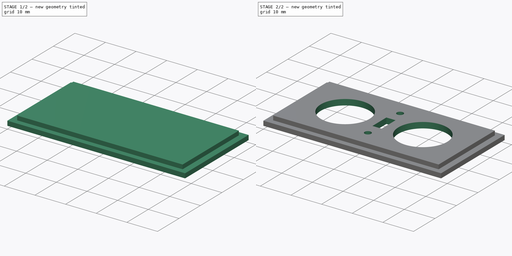
[diagram: build sequence overview — one tinted view per stage of 2, left to right]
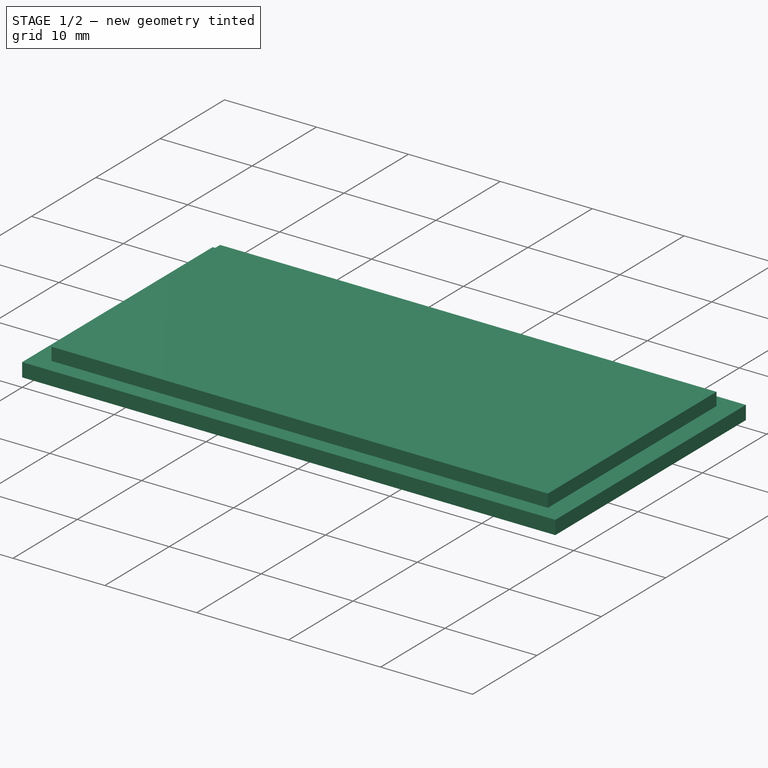
[diagram: stage 1 of 2 — iso view after this stage's code; geometry added in this stage tinted green]
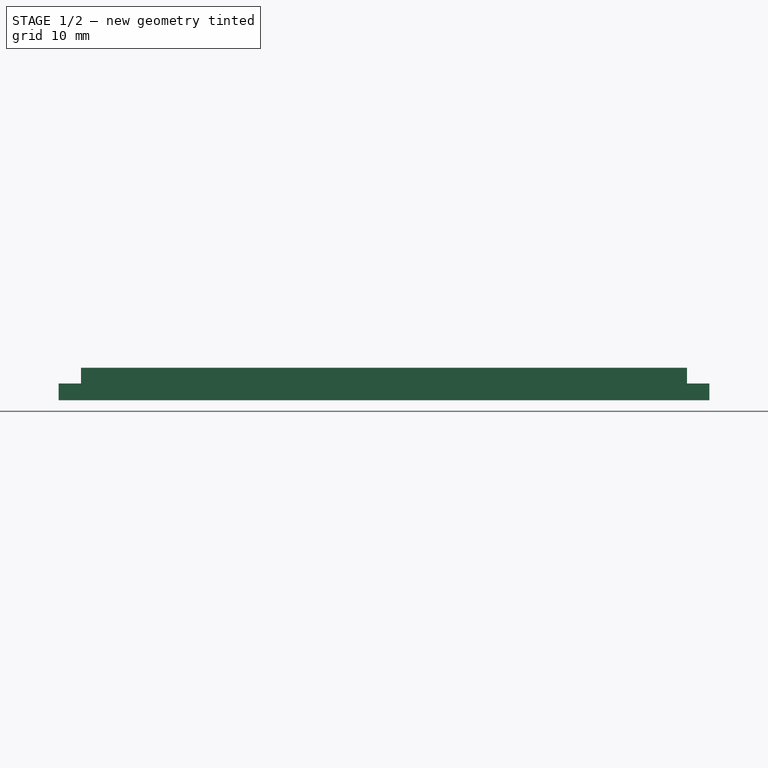
[diagram: stage 1 of 2 — front view after this stage's code; geometry added in this stage tinted green]
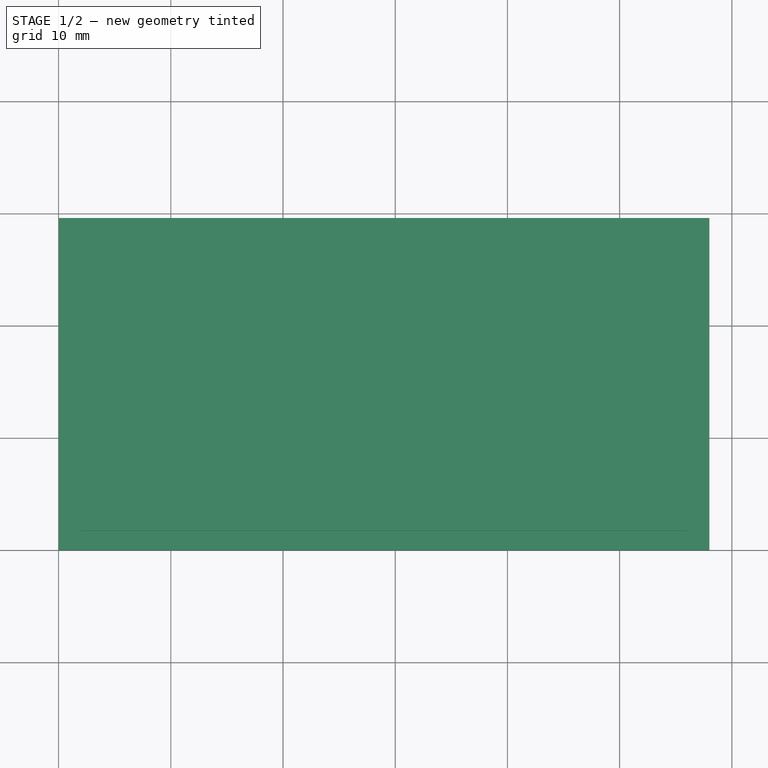
[diagram: stage 1 of 2 — top view after this stage's code; geometry added in this stage tinted green]
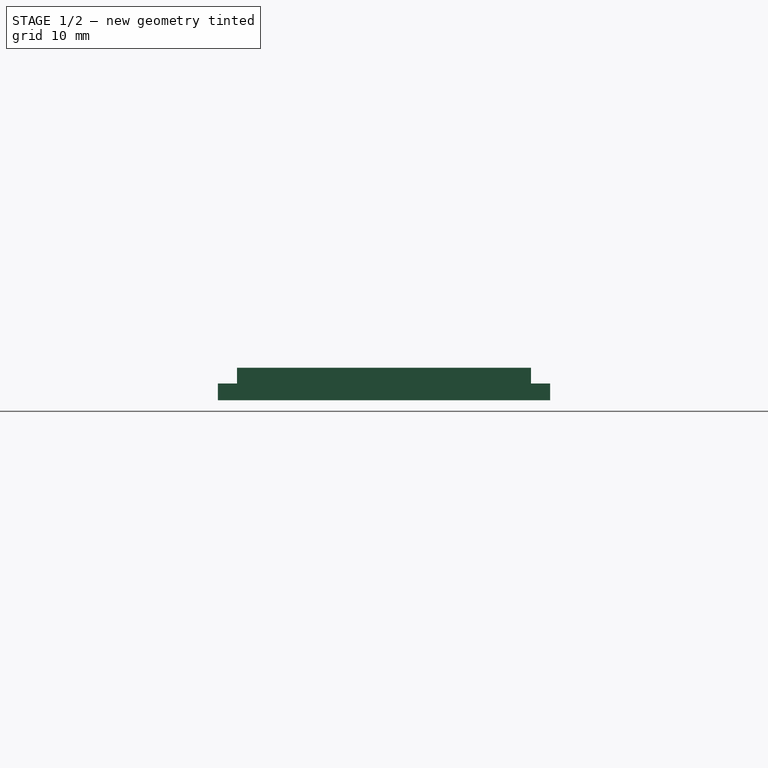
[diagram: stage 1 of 2 — right view after this stage's code; geometry added in this stage tinted green]
FCSTD DOCUMENT  (FreeCAD 0.19R24267 +148 (Git))
Label: COVER
License: All rights reserved
LicenseURL: http://en.wikipedia.org/wiki/All_rights_reserved
objects: Sketcher::SketchObject×4, PartDesign::Pad×2, PartDesign::Pocket×2, PartDesign::Body×1
note: 13 computed .brp shape members not serialized (recipe doc carries the construction recipe); baked Part::Feature solids carry a one-line shape summary decoded from their .brp

FEATURE [Sketcher::SketchObject] Sketch
  FullyConstrained = true
  MapMode = 5
  Support = -> [XY_Plane]
  sketch-geometry (4):
    g0: LineSegment StartX=0 StartY=0 StartZ=0 EndX=58 EndY=0 EndZ=0
    g1: LineSegment StartX=58 StartY=0 StartZ=0 EndX=58 EndY=29.6 EndZ=0
    g2: LineSegment StartX=58 StartY=29.6 StartZ=0 EndX=0 EndY=29.6 EndZ=0
    g3: LineSegment StartX=0 StartY=29.6 StartZ=0 EndX=0 EndY=0 EndZ=0
  constraints (11):
    c: Coincident(g0,g1)
    c: Coincident(g1,g2)
    c: Coincident(g2,g3)
    c: Coincident(g3,g0)
    c: Horizontal(g0)
    c: Horizontal(g2)
    c: Vertical(g1)
    c: Vertical(g3)
    c: Coincident(g0,g-1)
    c: DistanceX(g2,g2) = 58
    c: DistanceY(g3,g3) = 29.6
FEATURE [PartDesign::Pad] Pad
  Direction = (1,1,1)
  Length = 1.5
  Length2 = 100
  Profile = -> Sketch
  Type = 0
FEATURE [Sketcher::SketchObject] Sketch001
  FullyConstrained = true
  MapMode = 5
  Placement = pos=(0,0,1.5) rot=(0,0,1;0rad)
  Support = -> [Pad]
  sketch-geometry (4):
    g0: LineSegment StartX=2 StartY=27.9 StartZ=0 EndX=56 EndY=27.9 EndZ=0
    g1: LineSegment StartX=56 StartY=27.9 StartZ=0 EndX=56 EndY=1.7 EndZ=0
    g2: LineSegment StartX=56 StartY=1.7 StartZ=0 EndX=2 EndY=1.7 EndZ=0
    g3: LineSegment StartX=2 StartY=1.7 StartZ=0 EndX=2 EndY=27.9 EndZ=0
  constraints (12):
    c: Coincident(g0,g1)
    c: Coincident(g1,g2)
    c: Coincident(g2,g3)
    c: Coincident(g3,g0)
    c: Horizontal(g0)
    c: Horizontal(g2)
    c: Vertical(g1)
    c: Vertical(g3)
    c: DistanceX(g0,g0) = 54
    c: DistanceY(g1,g1) = 26.2
    c: Distance(g2,g-2) = 2
    c: Distance(g2,g-1) = 1.7
FEATURE [PartDesign::Pad] Pad001
  BaseFeature = -> Pad
  Direction = (1,1,1)
  Length = 1.4
  Length2 = 100
  Profile = -> Sketch001
  Type = 0
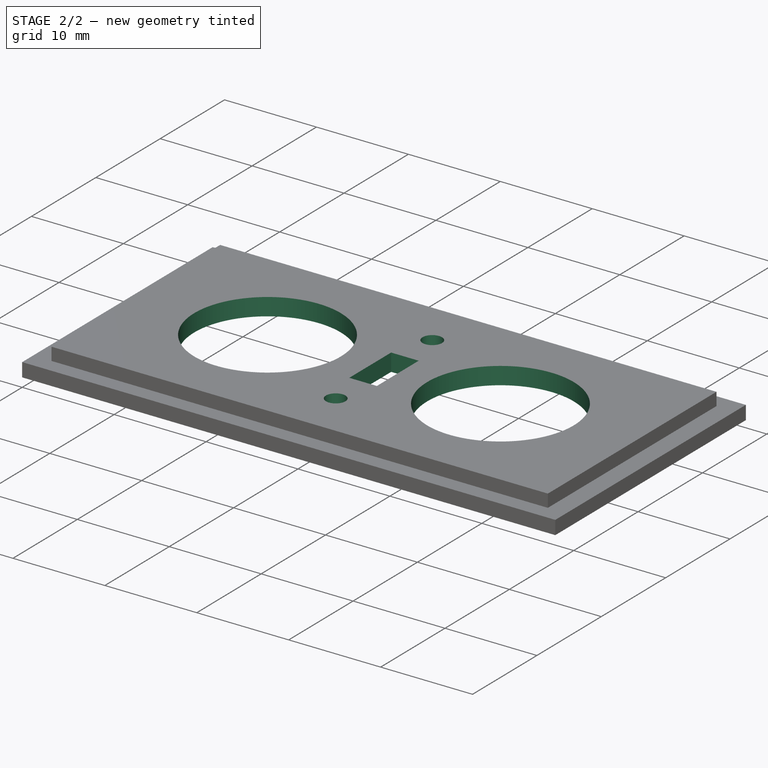
[diagram: stage 2 of 2 — iso view after this stage's code; geometry added in this stage tinted green]
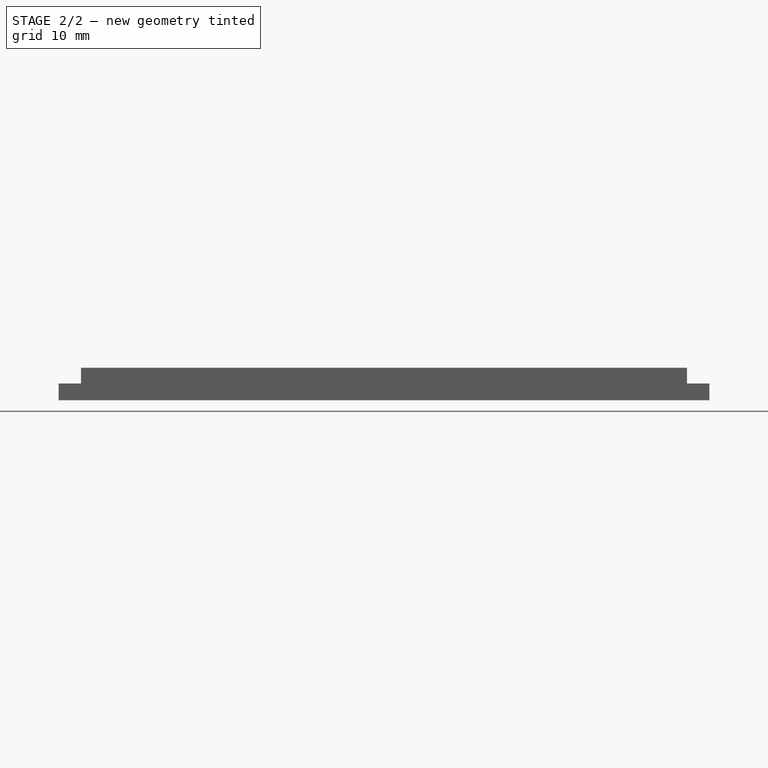
[diagram: stage 2 of 2 — front view after this stage's code; geometry added in this stage tinted green]
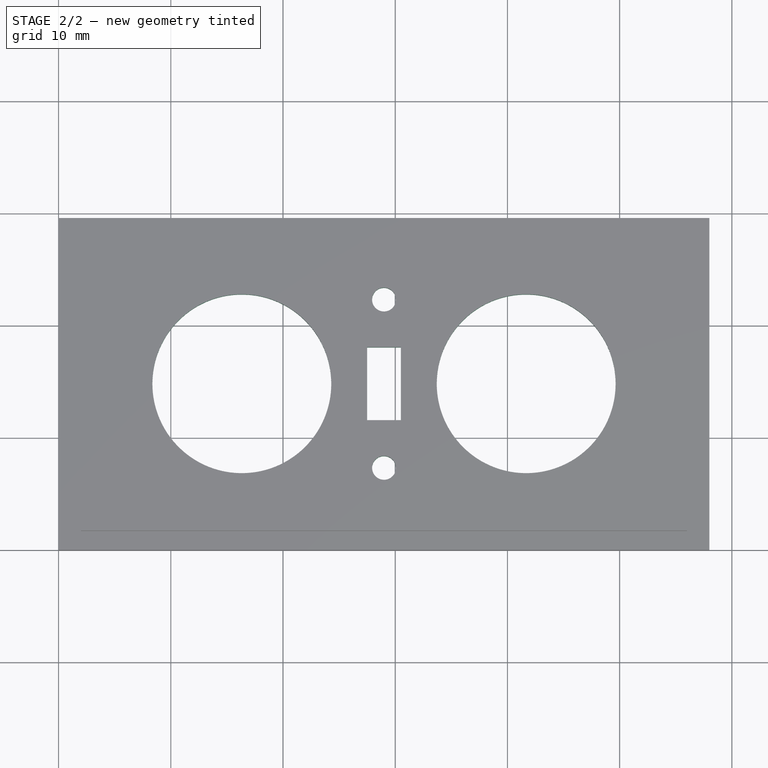
[diagram: stage 2 of 2 — top view after this stage's code; geometry added in this stage tinted green]
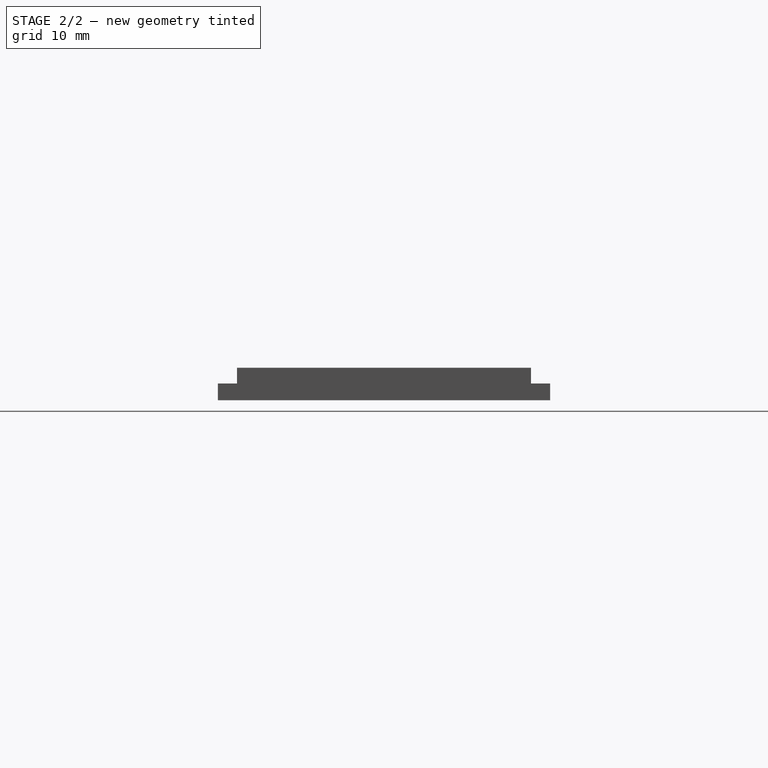
[diagram: stage 2 of 2 — right view after this stage's code; geometry added in this stage tinted green]
FEATURE [Sketcher::SketchObject] Sketch002
  FullyConstrained = true
  MapMode = 5
  Placement = pos=(0,0,0) rot=(1,0,0;3.14159rad)
  Support = -> [Pad001]
  sketch-geometry (4):
    g0: LineSegment StartX=3 StartY=-2.7 StartZ=0 EndX=55 EndY=-2.7 EndZ=0
    g1: LineSegment StartX=55 StartY=-2.7 StartZ=0 EndX=55 EndY=-26.9 EndZ=0
    g2: LineSegment StartX=55 StartY=-26.9 StartZ=0 EndX=3 EndY=-26.9 EndZ=0
    g3: LineSegment StartX=3 StartY=-26.9 StartZ=0 EndX=3 EndY=-2.7 EndZ=0
  constraints (12):
    c: Coincident(g0,g1)
    c: Coincident(g1,g2)
    c: Coincident(g2,g3)
    c: Coincident(g3,g0)
    c: Horizontal(g0)
    c: Horizontal(g2)
    c: Vertical(g1)
    c: Vertical(g3)
    c: DistanceX(g0,g0) = 52
    c: DistanceY(g3,g3) = 24.2
    c: Distance(g0,g-2) = 3
    c: Distance(g0,g-1) = 2.7
FEATURE [PartDesign::Pocket] Pocket  label="BASE"
  BaseFeature = -> Pad001
  Length = 1
  Length2 = 100
  Profile = -> Sketch002
  Type = 0
FEATURE [Sketcher::SketchObject] Sketch003
  FullyConstrained = true
  MapMode = 5
  Placement = pos=(0,0,2.9) rot=(0,0,1;0rad)
  Support = -> [Pocket]
  sketch-geometry (8):
    g0: Circle CenterX=16.33 CenterY=14.8 CenterZ=0 NormalX=0 NormalY=0 NormalZ=1 AngleXU=0 Radius=7.97
    g1: Circle CenterX=41.67 CenterY=14.8 CenterZ=0 NormalX=0 NormalY=0 NormalZ=1 AngleXU=0 Radius=7.97
    g2: LineSegment StartX=27.5 StartY=18.05 StartZ=0 EndX=30.5 EndY=18.05 EndZ=0
    g3: LineSegment StartX=30.5 StartY=18.05 StartZ=0 EndX=30.5 EndY=11.55 EndZ=0
    g4: LineSegment StartX=30.5 StartY=11.55 StartZ=0 EndX=27.5 EndY=11.55 EndZ=0
    g5: LineSegment StartX=27.5 StartY=11.55 StartZ=0 EndX=27.5 EndY=18.05 EndZ=0
    g6: Circle CenterX=29 CenterY=22.3 CenterZ=0 NormalX=0 NormalY=0 NormalZ=1 AngleXU=0 Radius=1.06
    g7: Circle CenterX=29 CenterY=7.3 CenterZ=0 NormalX=0 NormalY=0 NormalZ=1 AngleXU=0 Radius=1.06
  constraints (24):
    c: Radius(g0) = 7.97
    c: DistanceY(g-1,g0) = 14.8
    c: DistanceX(g-1,g0) = 16.33
    c: Radius(g1) = 7.97
    c: DistanceY(g-1,g1) = 14.8
    c: DistanceX(g0,g1) = 25.34
    c: Coincident(g2,g3)
    c: Coincident(g3,g4)
    c: Coincident(g4,g5)
    c: Coincident(g5,g2)
    c: Horizontal(g2)
    c: Horizontal(g4)
    c: Vertical(g3)
    c: Vertical(g5)
    c: DistanceX(g2,g2) = 3
    c: DistanceY(g5,g5) = 6.5
    c: DistanceX(g-1,g4) = 27.5
    c: DistanceY(g-1,g3) = 11.55
    c: Radius(g6) = 1.06
    c: Radius(g7) = 1.06
    c: DistanceX(g7,g6) = 0
    c: DistanceY(g7,g6) = 15
    c: DistanceX(g-1,g7) = 29
    c: DistanceY(g-1,g7) = 7.3
FEATURE [PartDesign::Pocket] Pocket001
  BaseFeature = -> Pocket
  Length = 5
  Length2 = 100
  Profile = -> Sketch003
  Type = 0
FEATURE [PartDesign::Body] Body
  Group = -> [Sketch,Pad,Sketch001,Pad001,Sketch002,Pocket,Sketch003,Pocket001]
  Origin = -> Origin
  Tip = -> Pocket001
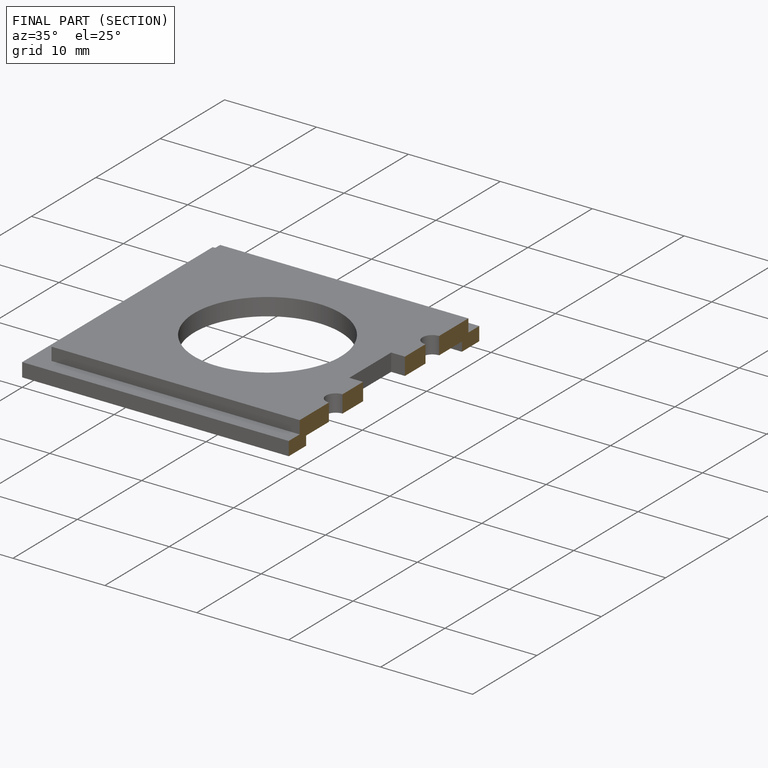
[diagram: finished part — half-section view (interior)]
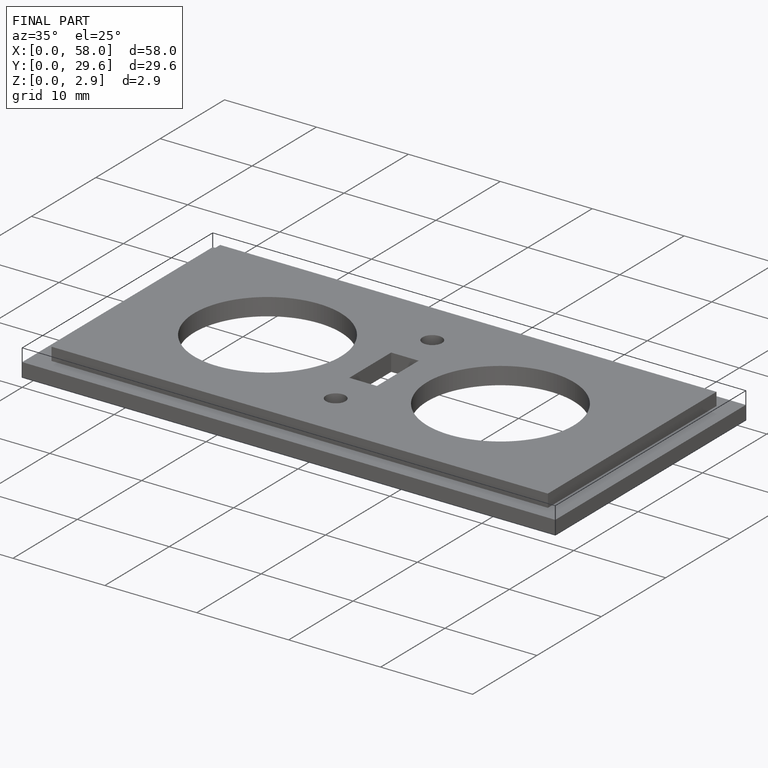
[diagram: finished part — iso view with bounding-box wireframe]
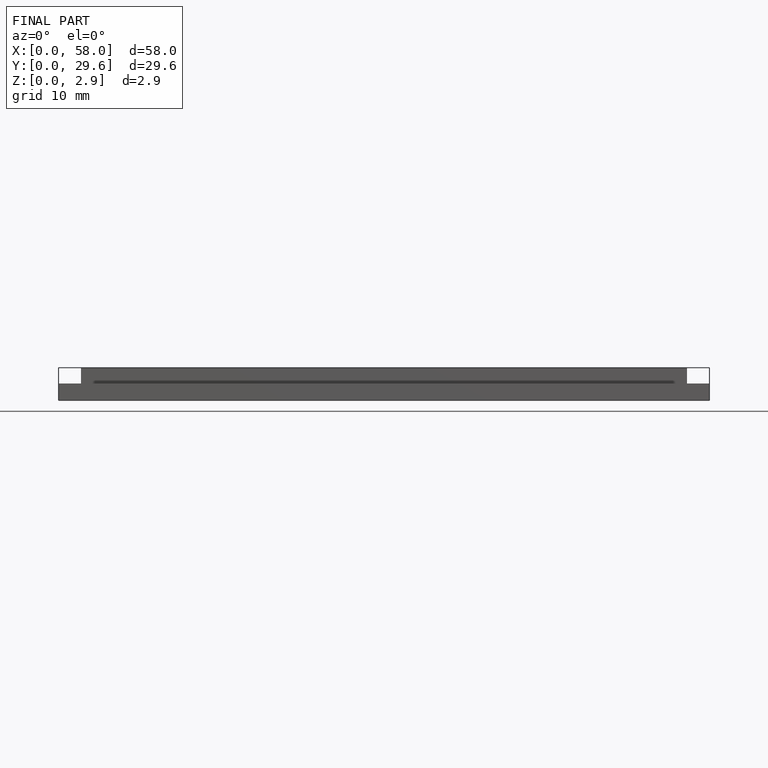
[diagram: finished part — front view with bounding-box wireframe]
